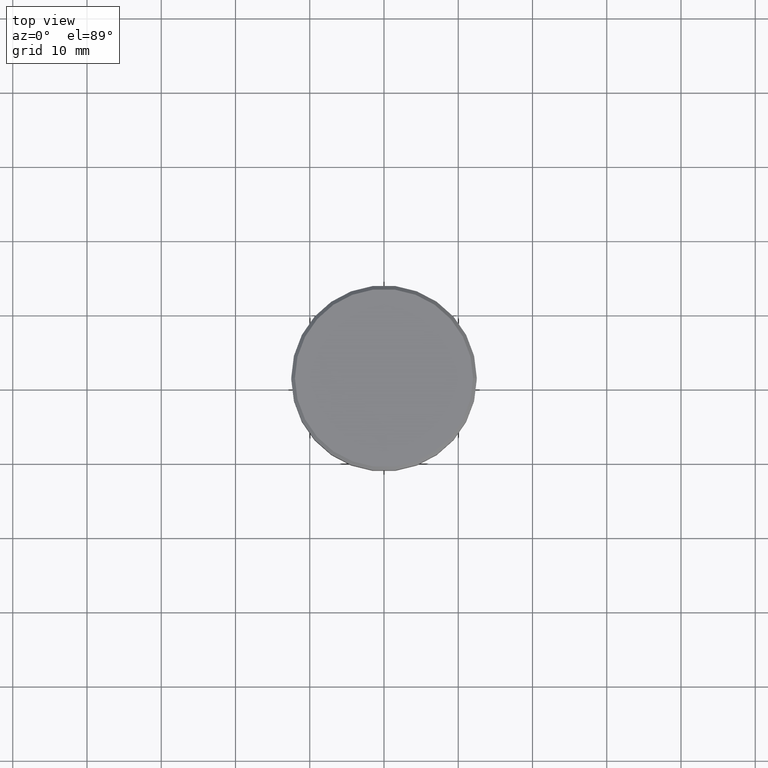
[diagram: clean part render]
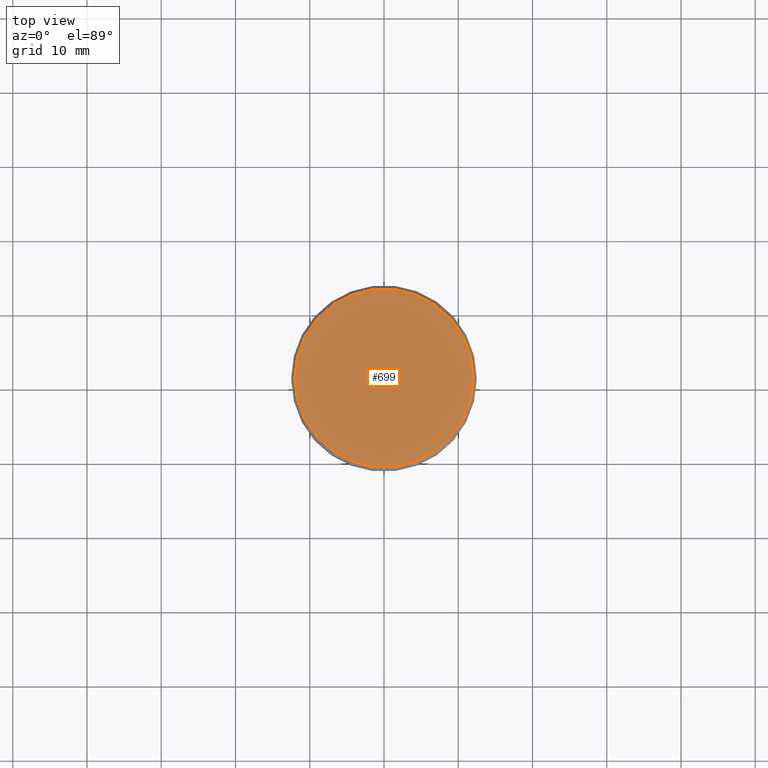
[diagram: same view with one face highlighted and labeled with its STEP entity id]
A machine part, top view. The second image highlights one B-rep face of the part: STEP entity #699.
In plain terms, the highlighted planar face has unit normal (0, -0, 1).
Its self-contained STEP definition (entity closure, byte-faithful):
#42 = DIRECTION ( 'NONE',  ( 1.000000000000000000, 0.000000000000000000, 0.000000000000000000 ) ) ;
#64 = CARTESIAN_POINT ( 'NONE',  ( 0.000000000000000000, 0.000000000000000000, 0.000000000000000000 ) ) ;
#124 = ORIENTED_EDGE ( 'NONE', *, *, #190, .T. ) ;
#190 = EDGE_CURVE ( 'NONE', #662, #1012, #819, .T. ) ;
#218 = CARTESIAN_POINT ( 'NONE',  ( -12.00000000000002487, 0.000000000000000000, 0.000000000000000000 ) ) ;
#289 = CARTESIAN_POINT ( 'NONE',  ( 0.000000000000000000, 0.000000000000000000, 0.000000000000000000 ) ) ;
#328 = FACE_OUTER_BOUND ( 'NONE', #1053, .T. ) ;
#398 = DIRECTION ( 'NONE',  ( -0.000000000000000000, -0.000000000000000000, 1.000000000000000000 ) ) ;
#486 = AXIS2_PLACEMENT_3D ( 'NONE', #289, #398, #570 ) ;
#570 = DIRECTION ( 'NONE',  ( 1.000000000000000000, 0.000000000000000000, 0.000000000000000000 ) ) ;
#606 = DIRECTION ( 'NONE',  ( -0.000000000000000000, -0.000000000000000000, 1.000000000000000000 ) ) ;
#644 = EDGE_CURVE ( 'NONE', #1012, #662, #943, .T. ) ;
#662 = VERTEX_POINT ( 'NONE', #218 ) ;
#672 = DIRECTION ( 'NONE',  ( 0.000000000000000000, -0.000000000000000000, 1.000000000000000000 ) ) ;
#699 = ADVANCED_FACE ( 'NONE', ( #328 ), #858, .T. ) ;
#819 = CIRCLE ( 'NONE', #1015, 12.00000000000002487 ) ;
#858 = PLANE ( 'NONE',  #1107 ) ;
#910 = ORIENTED_EDGE ( 'NONE', *, *, #644, .T. ) ;
#943 = CIRCLE ( 'NONE', #486, 12.00000000000002487 ) ;
#953 = CARTESIAN_POINT ( 'NONE',  ( 0.000000000000000000, 0.000000000000000000, 0.000000000000000000 ) ) ;
#978 = DIRECTION ( 'NONE',  ( 1.000000000000000000, 0.000000000000000000, 0.000000000000000000 ) ) ;
#993 = CARTESIAN_POINT ( 'NONE',  ( 12.00000000000002487, 1.500192328955509115E-15, 0.000000000000000000 ) ) ;
#1012 = VERTEX_POINT ( 'NONE', #993 ) ;
#1015 = AXIS2_PLACEMENT_3D ( 'NONE', #64, #606, #978 ) ;
#1053 = EDGE_LOOP ( 'NONE', ( #124, #910 ) ) ;
#1107 = AXIS2_PLACEMENT_3D ( 'NONE', #953, #672, #42 ) ;